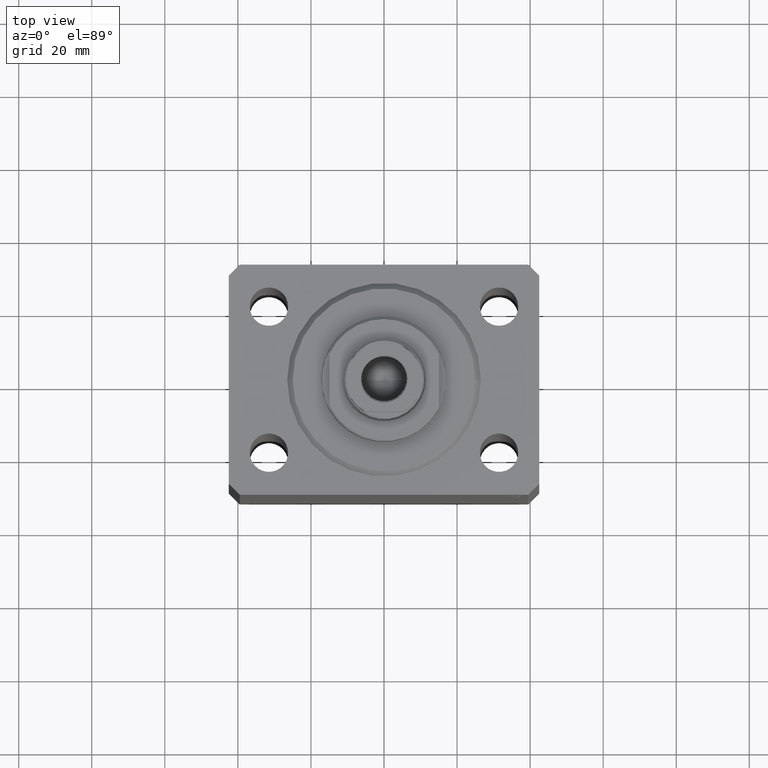
[diagram: clean part render]
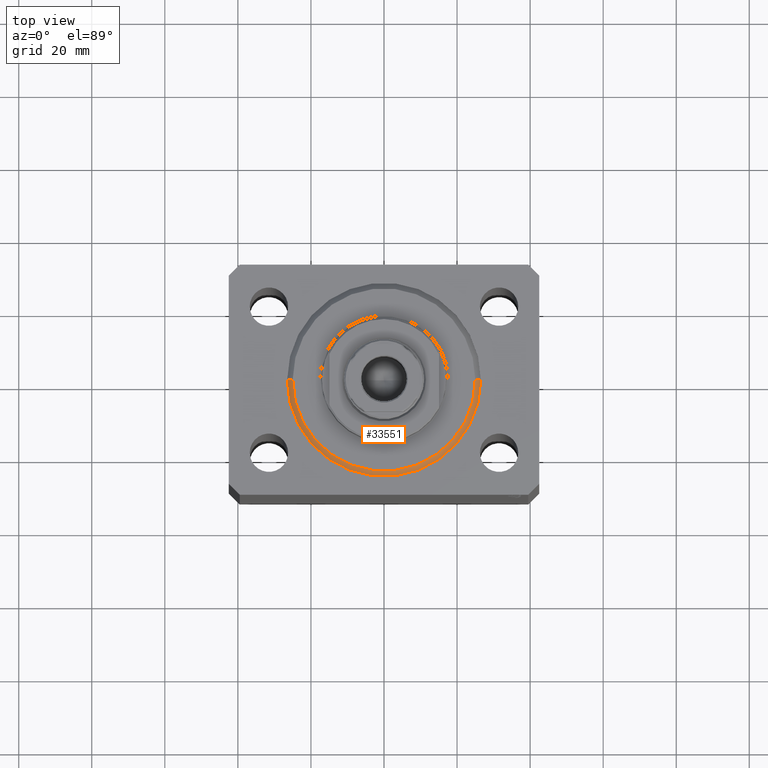
[diagram: same view with one face highlighted and labeled with its STEP entity id]
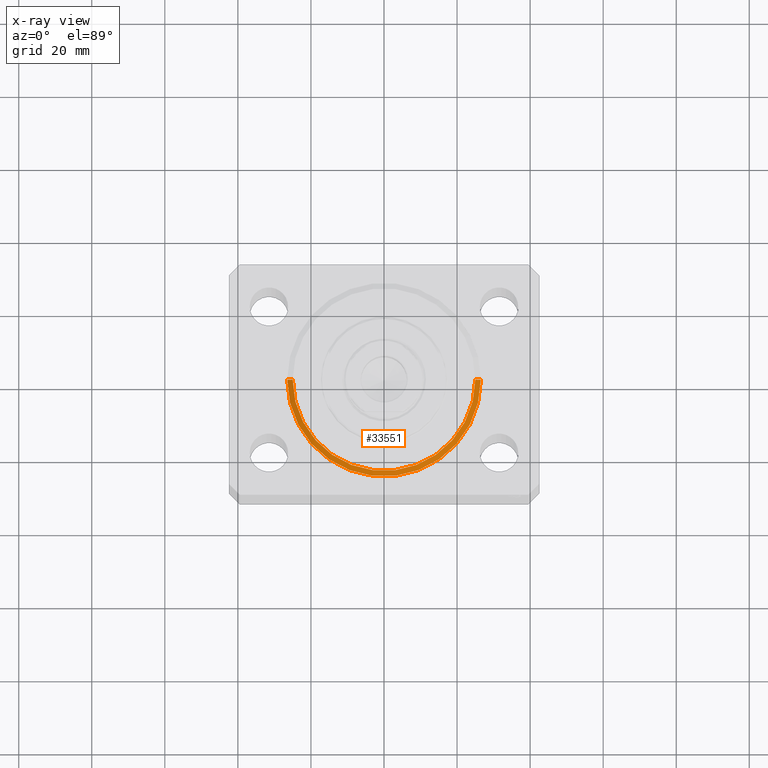
[diagram: x-ray of the same camera — body ghosted, the highlighted face saturated]
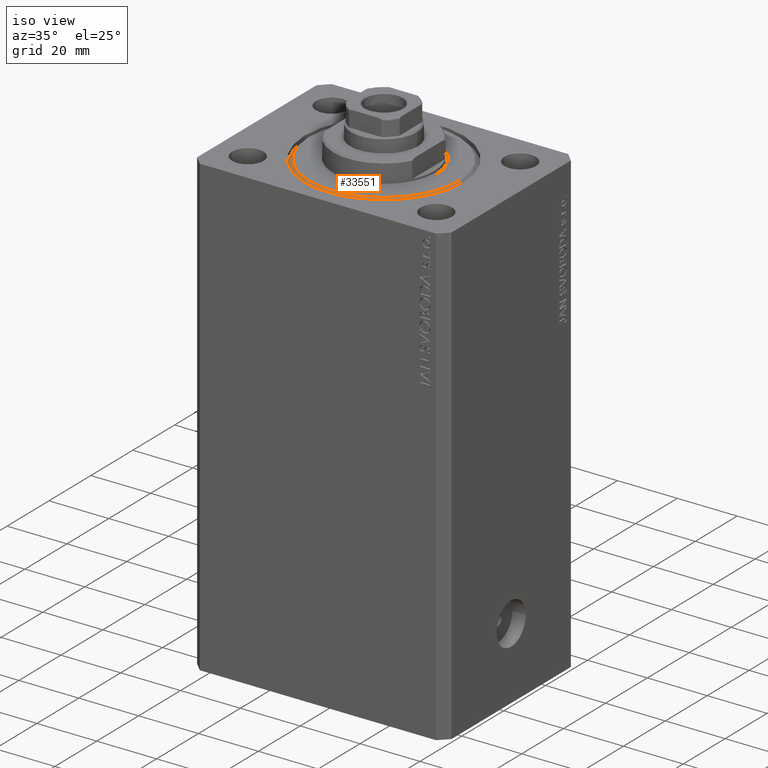
[diagram: same view with one face highlighted and labeled with its STEP entity id]
A machine part, top view. The second image highlights one B-rep face of the part: STEP entity #33551.
The next image is the same camera in x-ray: the body ghosted, the highlighted face saturated — about 0% of this face is hidden behind the body in this view.
A second angle (iso view) of the same face is appended — the face is thin or edge-on in the first view.
In plain terms, the highlighted conical surface has half-angle 45 deg.
Its self-contained STEP definition (entity closure, byte-faithful):
#2373 = VERTEX_POINT ( 'NONE', #44488 ) ;
#3569 = CARTESIAN_POINT ( 'NONE',  ( 26.50000000000000355, 0.000000000000000000, 1.500000000000018652 ) ) ;
#4905 = CIRCLE ( 'NONE', #13543, 26.50000000000000355 ) ;
#7111 = CONICAL_SURFACE ( 'NONE', #10716, 26.50000000000000355, 0.7853981633974495002 ) ;
#10716 = AXIS2_PLACEMENT_3D ( 'NONE', #17320, #24760, #28558 ) ;
#11585 = ORIENTED_EDGE ( 'NONE', *, *, #31999, .F. ) ;
#13543 = AXIS2_PLACEMENT_3D ( 'NONE', #32576, #20314, #35951 ) ;
#13781 = AXIS2_PLACEMENT_3D ( 'NONE', #27583, #34352, #30738 ) ;
#15603 = VERTEX_POINT ( 'NONE', #29388 ) ;
#15978 = EDGE_CURVE ( 'NONE', #15603, #29223, #36283, .T. ) ;
#17106 = ORIENTED_EDGE ( 'NONE', *, *, #39978, .F. ) ;
#17320 = CARTESIAN_POINT ( 'NONE',  ( 0.000000000000000000, 0.000000000000000000, 1.500000000000018652 ) ) ;
#19509 = CARTESIAN_POINT ( 'NONE',  ( 26.50000000000000355, 3.245314017740486554E-15, 1.500000000000018652 ) ) ;
#20314 = DIRECTION ( 'NONE',  ( -0.000000000000000000, -0.000000000000000000, 1.000000000000000000 ) ) ;
#20703 = CARTESIAN_POINT ( 'NONE',  ( -26.50000000000000355, 3.245314017740486554E-15, 1.500000000000018652 ) ) ;
#24568 = CIRCLE ( 'NONE', #13781, 24.99999999999998224 ) ;
#24760 = DIRECTION ( 'NONE',  ( -0.000000000000000000, -0.000000000000000000, 1.000000000000000000 ) ) ;
#24830 = VERTEX_POINT ( 'NONE', #19509 ) ;
#27473 = LINE ( 'NONE', #3569, #30193 ) ;
#27583 = CARTESIAN_POINT ( 'NONE',  ( 0.000000000000000000, 0.000000000000000000, 0.000000000000000000 ) ) ;
#28558 = DIRECTION ( 'NONE',  ( 1.000000000000000000, 0.000000000000000000, 0.000000000000000000 ) ) ;
#29223 = VERTEX_POINT ( 'NONE', #33791 ) ;
#29388 = CARTESIAN_POINT ( 'NONE',  ( -24.99999999999998224, 3.153465507804433615E-15, 0.000000000000000000 ) ) ;
#30193 = VECTOR ( 'NONE', #40766, 1000.000000000000000 ) ;
#30738 = DIRECTION ( 'NONE',  ( 1.000000000000000000, 0.000000000000000000, 0.000000000000000000 ) ) ;
#30854 = DIRECTION ( 'NONE',  ( -0.7071067811865483499, 8.659560562354942719E-17, 0.7071067811865466846 ) ) ;
#31999 = EDGE_CURVE ( 'NONE', #29223, #24830, #4905, .T. ) ;
#32576 = CARTESIAN_POINT ( 'NONE',  ( 0.000000000000000000, 0.000000000000000000, 1.500000000000018652 ) ) ;
#33551 = ADVANCED_FACE ( 'NONE', ( #35355 ), #7111, .T. ) ;
#33791 = CARTESIAN_POINT ( 'NONE',  ( -26.50000000000000355, 0.000000000000000000, 1.500000000000018652 ) ) ;
#34259 = EDGE_CURVE ( 'NONE', #2373, #24830, #27473, .T. ) ;
#34352 = DIRECTION ( 'NONE',  ( -0.000000000000000000, -0.000000000000000000, -1.000000000000000000 ) ) ;
#35355 = FACE_OUTER_BOUND ( 'NONE', #44022, .T. ) ;
#35468 = ORIENTED_EDGE ( 'NONE', *, *, #15978, .F. ) ;
#35951 = DIRECTION ( 'NONE',  ( 1.000000000000000000, 0.000000000000000000, 0.000000000000000000 ) ) ;
#36283 = LINE ( 'NONE', #20703, #40320 ) ;
#37890 = ORIENTED_EDGE ( 'NONE', *, *, #34259, .T. ) ;
#39978 = EDGE_CURVE ( 'NONE', #2373, #15603, #24568, .T. ) ;
#40320 = VECTOR ( 'NONE', #30854, 1000.000000000000000 ) ;
#40766 = DIRECTION ( 'NONE',  ( 0.7071067811865483499, 0.000000000000000000, 0.7071067811865466846 ) ) ;
#44022 = EDGE_LOOP ( 'NONE', ( #35468, #17106, #37890, #11585 ) ) ;
#44488 = CARTESIAN_POINT ( 'NONE',  ( 24.99999999999998224, 0.000000000000000000, 0.000000000000000000 ) ) ;